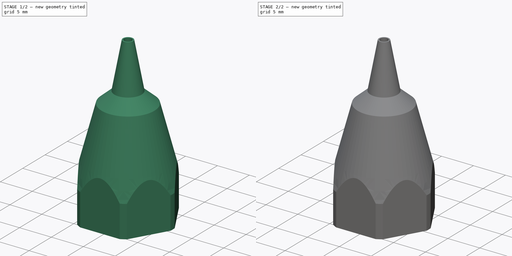
[diagram: build sequence overview — one tinted view per stage of 2, left to right]
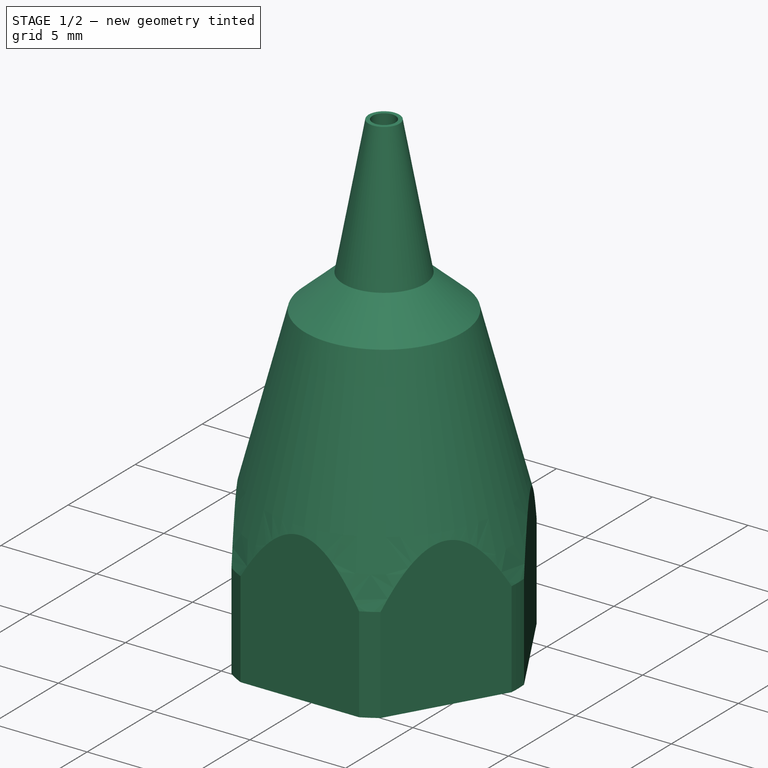
[diagram: stage 1 of 2 — iso view after this stage's code; geometry added in this stage tinted green]
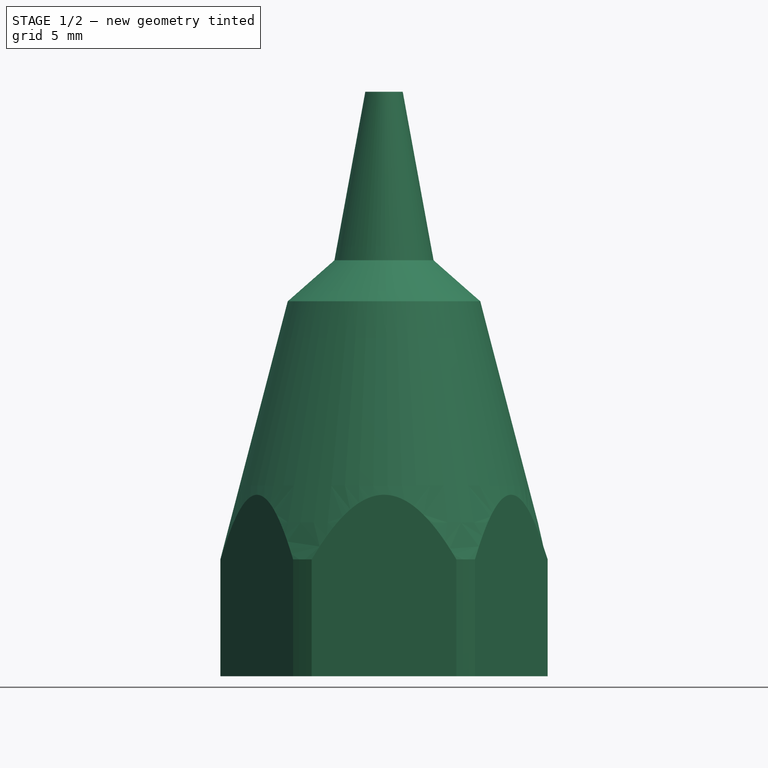
[diagram: stage 1 of 2 — front view after this stage's code; geometry added in this stage tinted green]
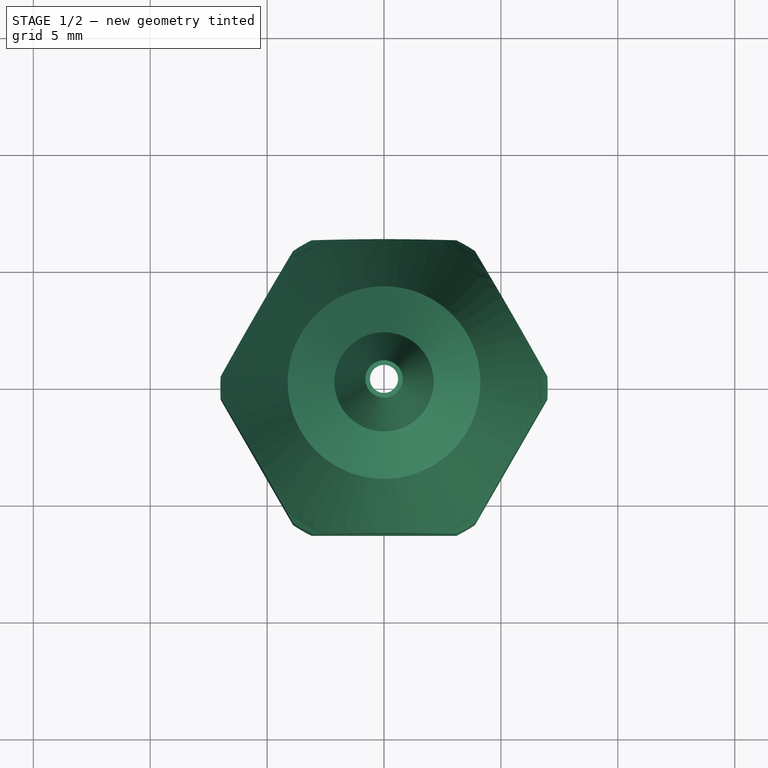
[diagram: stage 1 of 2 — top view after this stage's code; geometry added in this stage tinted green]
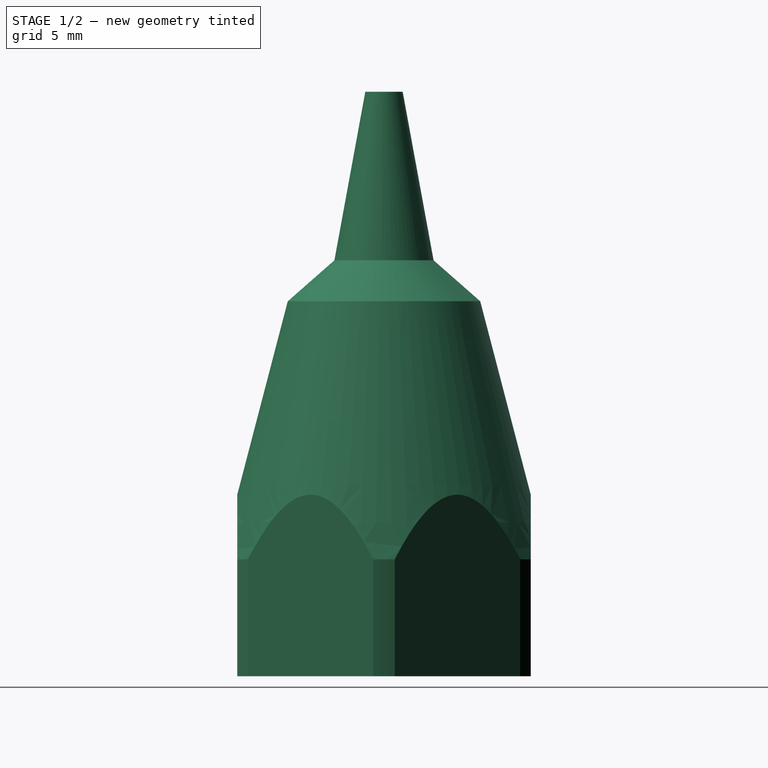
[diagram: stage 1 of 2 — right view after this stage's code; geometry added in this stage tinted green]
FCSTD DOCUMENT  (FreeCAD 0.18R15969 (Git))
Label: glue_adapter_4
License: All rights reserved
LicenseURL: http://en.wikipedia.org/wiki/All_rights_reserved
objects: Sketcher::SketchObject×4, PartDesign::Revolution×3, PartDesign::Pocket×1, PartDesign::Body×1
note: 13 computed .brp shape members not serialized (recipe doc carries the construction recipe); baked Part::Feature solids carry a one-line shape summary decoded from their .brp

FEATURE [Sketcher::SketchObject] Sketch
  MapMode = 5
  Placement = pos=(0,0,0) rot=(1,0,0;1.5708rad)
  Support = -> [XZ_Plane]
  sketch-geometry (11):
    g0: LineSegment StartX=-1 StartY=14.6 StartZ=0 EndX=-2.3 EndY=14.6 EndZ=0
    g1: LineSegment StartX=-2.3 StartY=14.6 StartZ=0 EndX=-3.2 EndY=6.5 EndZ=0
    g2: LineSegment StartX=-3.2 StartY=6.5 StartZ=0 EndX=-4.38 EndY=5 EndZ=0
    g3: LineSegment StartX=-4.38 StartY=5 StartZ=0 EndX=-4.38 EndY=0 EndZ=0
    g4: LineSegment StartX=-4.38 StartY=0 StartZ=0 EndX=-7 EndY=0 EndZ=0
    g5: LineSegment StartX=-7 StartY=0 StartZ=0 EndX=-7 EndY=5 EndZ=0
    g6: LineSegment StartX=-0.8 StartY=25 StartZ=0 EndX=-0.6 EndY=25 EndZ=0
    g7: LineSegment StartX=-0.6 StartY=25 StartZ=0 EndX=-1 EndY=14.6 EndZ=0
    g8: LineSegment StartX=-0.8 StartY=25 StartZ=0 EndX=-2.1211 EndY=17.7918 EndZ=0
    g9: LineSegment StartX=-2.1211 StartY=17.7918 StartZ=0 EndX=-4.11843 EndY=16.0366 EndZ=0
    g10: LineSegment StartX=-4.11843 StartY=16.0366 StartZ=0 EndX=-7 EndY=5 EndZ=0
  constraints (29):
    c: Horizontal(g0)
    c: Coincident(g0,g1)
    c: Coincident(g1,g2)
    c: Coincident(g2,g3)
    c: PointOnObject(g3,g-1)
    c: Vertical(g3)
    c: Coincident(g3,g4)
    c: PointOnObject(g4,g-1)
    c: Coincident(g4,g5)
    c: Vertical(g5)
    c: Horizontal(g6)
    c: Coincident(g6,g7)
    c: Coincident(g7,g0)
    c: DistanceY(g-1,g0) = 14.6
    c: DistanceX(g0,g-1) = 2.3
    c: DistanceX(g0,g-1) = 1
    c: DistanceY(g-1,g2) = 5
    c: DistanceX(g1,g-1) = 3.2
    c: DistanceX(g2,g-1) = 4.38
    c: DistanceX(g6,g-1) = 0.6
    c: DistanceX(g6,g-1) = 0.8
    c: DistanceY(g-1,g6) = 25
    c: DistanceX(g4,g-1) = 7
    c: DistanceY(g-1,g5) = 5
    c: DistanceY(g-1,g1) = 6.5
    c: Coincident(g6,g8)
    c: Coincident(g8,g9)
    c: Coincident(g9,g10)
    c: Coincident(g10,g5)
FEATURE [PartDesign::Revolution] Revolution
  Angle = 360
  Axis = (0,-2e-16,1)
  Base = (0,0,0)
  Placement = pos=(0,0,0) rot=(1,0,0;1.5708rad)
  Profile = -> Sketch
  ReferenceAxis = -> Sketch [V_Axis]
  Refine = true
FEATURE [Sketcher::SketchObject] Sketch001
  MapMode = 5
  Placement = pos=(0,0,0) rot=(1,0,0;3.14159rad)
  Support = -> [Revolution]
  sketch-geometry (8):
    g0: LineSegment StartX=-3.625 StartY=6.27868 StartZ=0 EndX=-7.25 EndY=0 EndZ=0
    g1: LineSegment StartX=-7.25 StartY=0 StartZ=0 EndX=-3.625 EndY=-6.27868 EndZ=0
    g2: LineSegment StartX=-3.625 StartY=-6.27868 StartZ=0 EndX=3.625 EndY=-6.27868 EndZ=0
    g3: LineSegment StartX=3.625 StartY=-6.27868 StartZ=0 EndX=7.25 EndY=-9e-16 EndZ=0
    g4: LineSegment StartX=7.25 StartY=-9e-16 StartZ=0 EndX=3.625 EndY=6.27868 EndZ=0
    g5: LineSegment StartX=3.625 StartY=6.27868 StartZ=0 EndX=-3.625 EndY=6.27868 EndZ=0
    g6: Circle [constr] CenterX=0 CenterY=0 CenterZ=0 NormalX=0 NormalY=0 NormalZ=1 AngleXU=0 Radius=7.25
    g7: Circle CenterX=0 CenterY=0 CenterZ=0 NormalX=0 NormalY=0 NormalZ=1 AngleXU=0 Radius=16.1462
  constraints (17):
    c: Coincident(g0,g1)
    c: Coincident(g1,g2)
    c: Coincident(g2,g3)
    c: Coincident(g3,g4)
    c: Coincident(g4,g5)
    c: Coincident(g5,g0)
    c: Equal(g0, g1-g5) x5
    c: PointOnObject(g0,g6)
    c: PointOnObject(g1,g6)
    c: PointOnObject(g2,g6)
    c: PointOnObject(g3,g6)
    c: PointOnObject(g4,g6)
    c: PointOnObject(g5,g6)
    c: Coincident(g6,g-1)
    c: Horizontal(g5)
    c: DistanceX(g0,g3) = 14.5
    c: Coincident(g7,g-1)
FEATURE [PartDesign::Pocket] Pocket
  BaseFeature = -> Revolution
  Length = 5
  Length2 = 100
  Placement = pos=(0,0,0) rot=(1,0,0;1.5708rad)
  Profile = -> Sketch001
  Refine = true
  Type = 1
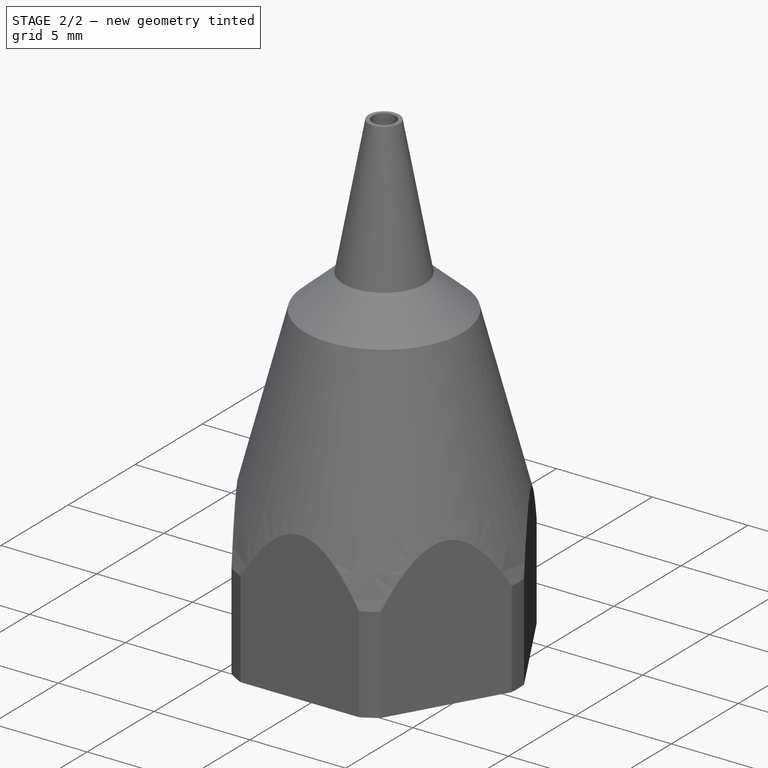
[diagram: stage 2 of 2 — iso view after this stage's code; geometry added in this stage tinted green]
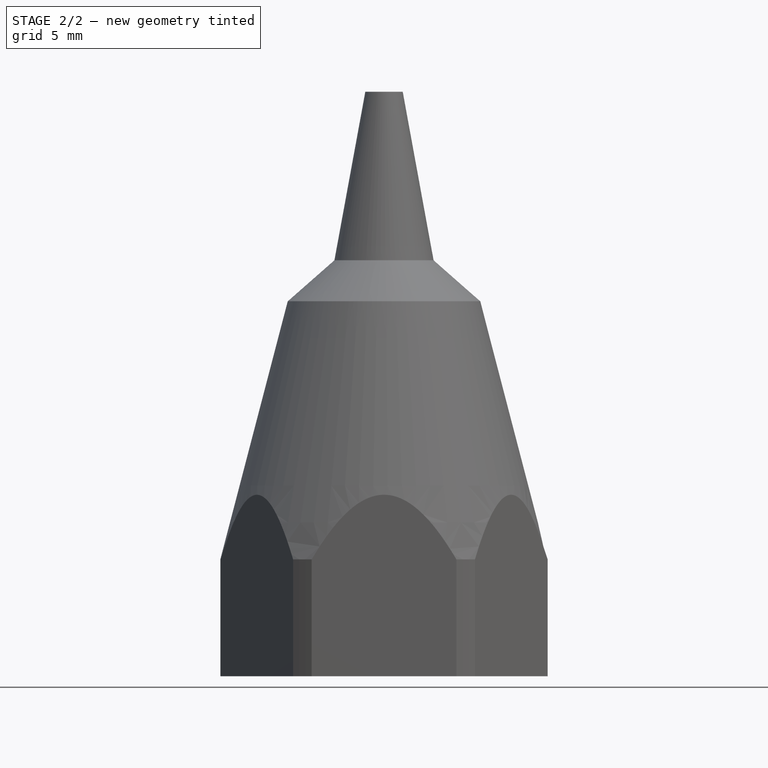
[diagram: stage 2 of 2 — front view after this stage's code; geometry added in this stage tinted green]
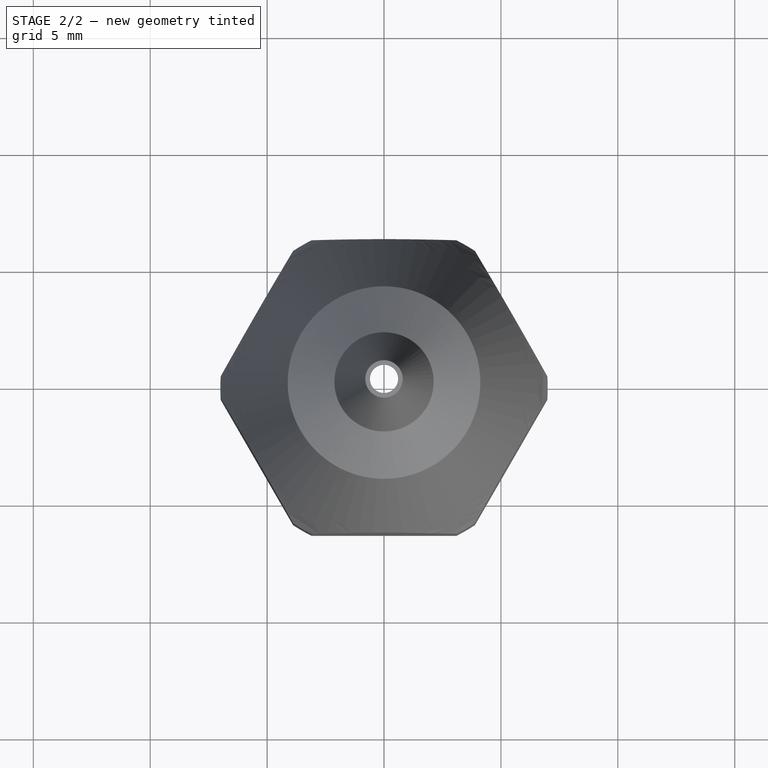
[diagram: stage 2 of 2 — top view after this stage's code; geometry added in this stage tinted green]
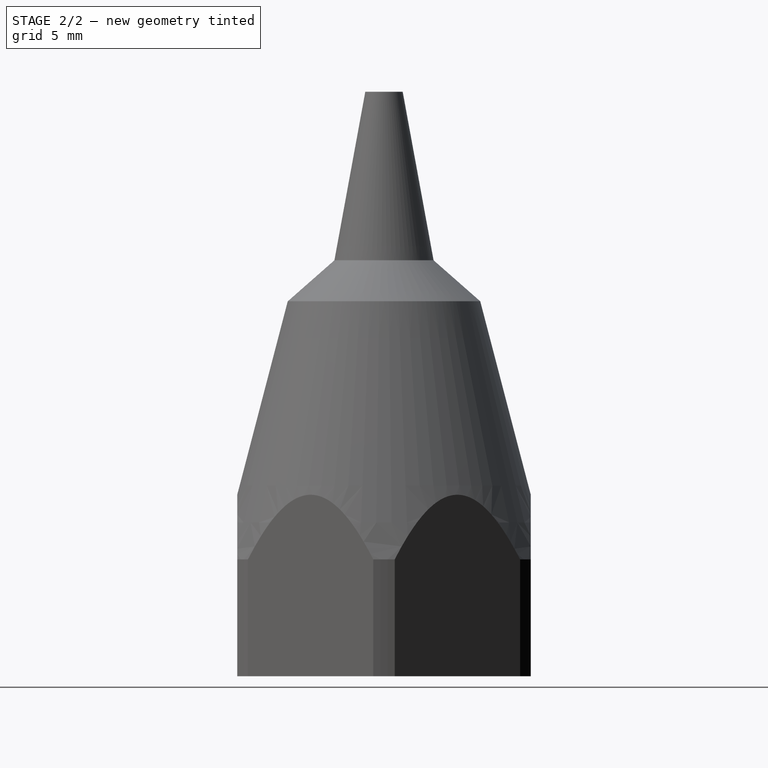
[diagram: stage 2 of 2 — right view after this stage's code; geometry added in this stage tinted green]
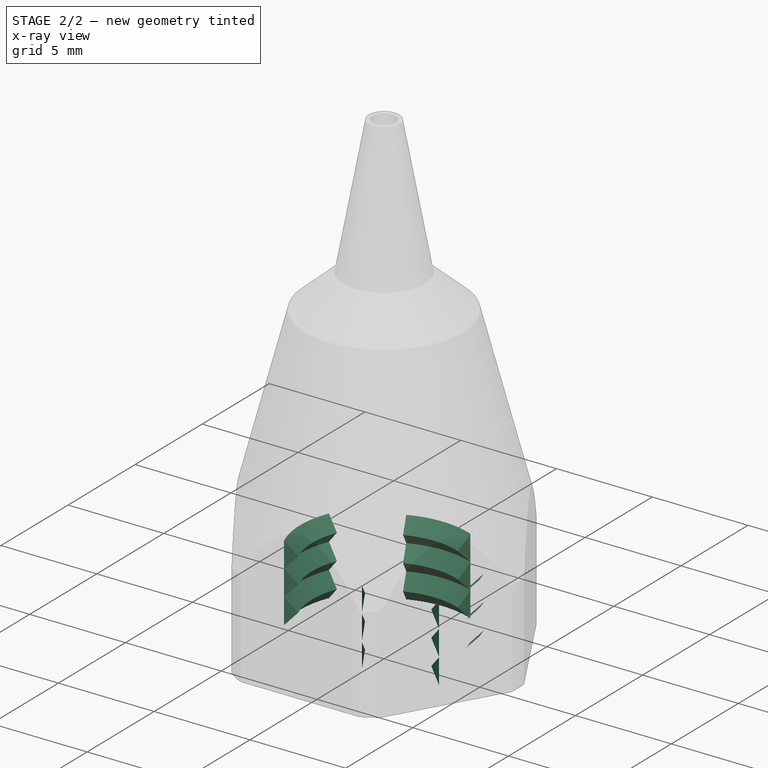
[diagram: stage 2 of 2 — x-ray composite at the iso view; earlier geometry ghosted, this stage's added geometry solid]
FEATURE [Sketcher::SketchObject] Sketch002
  MapMode = 5
  Placement = pos=(0,0,0) rot=(1,0,0;1.5708rad)
  Support = -> [XZ_Plane]
  expr: Constraints[71] = 4 / 3 * 0
  expr: Constraints[31] = 4 / 3 * 0.5
  sketch-geometry (26):
    g0: LineSegment StartX=-4.88 StartY=4.66667 StartZ=0 EndX=-4.38 EndY=4.66667 EndZ=0
    g1: LineSegment StartX=-4.38 StartY=4.66667 StartZ=0 EndX=-3.75 EndY=4 EndZ=0
    g2: LineSegment StartX=-3.75 StartY=4 StartZ=0 EndX=-4.38 EndY=3.33333 EndZ=0
    g3: LineSegment StartX=-4.88 StartY=0.666667 StartZ=0 EndX=-4.88 EndY=4.66667 EndZ=0
    g4: LineSegment [constr] StartX=-4.38 StartY=4.66667 StartZ=0 EndX=-4.38 EndY=3.33333 EndZ=0
    g5: LineSegment [constr] StartX=-4.38 StartY=3.33333 StartZ=0 EndX=-4.38 EndY=2 EndZ=0
    g6: LineSegment [constr] StartX=-4.38 StartY=2 StartZ=0 EndX=-4.38 EndY=0.666667 EndZ=0
    g7: LineSegment StartX=-4.38 StartY=3.33333 StartZ=0 EndX=-3.75 EndY=2.66667 EndZ=0
    g8: LineSegment StartX=-3.75 StartY=2.66667 StartZ=0 EndX=-4.38 EndY=2 EndZ=0
    g9: LineSegment StartX=-4.38 StartY=2 StartZ=0 EndX=-3.75 EndY=1.33333 EndZ=0
    g10: LineSegment StartX=-3.75 StartY=1.33333 StartZ=0 EndX=-4.38 EndY=0.666667 EndZ=0
    g11: LineSegment StartX=-4.88 StartY=0.666667 StartZ=0 EndX=-4.38 EndY=0.666667 EndZ=0
    g12: LineSegment StartX=4.88 StartY=0 StartZ=0 EndX=4.88 EndY=4 EndZ=0
    g13: LineSegment StartX=4.88 StartY=4 StartZ=0 EndX=4.38 EndY=4 EndZ=0
    g14: LineSegment StartX=4.38 StartY=4 StartZ=0 EndX=3.75 EndY=3.33333 EndZ=0
    g15: LineSegment StartX=3.75 StartY=3.33333 StartZ=0 EndX=4.38 EndY=2.66667 EndZ=0
    g16: LineSegment StartX=4.38 StartY=2.66667 StartZ=0 EndX=3.75 EndY=2 EndZ=0
    g17: LineSegment StartX=3.75 StartY=2 StartZ=0 EndX=4.38 EndY=1.33333 EndZ=0
    g18: LineSegment StartX=4.38 StartY=1.33333 StartZ=0 EndX=3.75 EndY=0.666667 EndZ=0
    g19: LineSegment StartX=3.75 StartY=0.666667 StartZ=0 EndX=4.38 EndY=0 EndZ=0
    g20: LineSegment StartX=4.38 StartY=0 StartZ=0 EndX=4.88 EndY=0 EndZ=0
    g21: LineSegment [constr] StartX=4.38 StartY=4 StartZ=0 EndX=4.38 EndY=2.66667 EndZ=0
    g22: LineSegment [constr] StartX=4.38 StartY=2.66667 StartZ=0 EndX=4.38 EndY=1.33333 EndZ=0
    g23: LineSegment [constr] StartX=4.38 StartY=1.33333 StartZ=0 EndX=4.38 EndY=0 EndZ=0
    g24: LineSegment [constr] StartX=-3.75 StartY=4 StartZ=0 EndX=0 EndY=4 EndZ=0
    g25: LineSegment [constr] StartX=3.75 StartY=3.33333 StartZ=0 EndX=0 EndY=3.33333 EndZ=0
  constraints (72):
    c: Coincident(g0,g1)
    c: Coincident(g1,g2)
    c: Coincident(g3,g0)
    c: Vertical(g3)
    c: Horizontal(g0)
    c: DistanceX(g2,g-1) = 4.38
    c: Equal(g1,g2)
    c: DistanceX(g1,g-1) = 3.75
    c: Coincident(g0,g4)
    c: Coincident(g4,g2)
    c: Vertical(g4)
    c: Coincident(g4,g5)
    c: Vertical(g5)
    c: Coincident(g5,g6)
    c: Vertical(g6)
    c: Coincident(g2,g7)
    c: Coincident(g7,g8)
    c: Coincident(g8,g5)
    c: Coincident(g8,g9)
    c: Coincident(g9,g10)
    c: Coincident(g10,g6)
    c: Equal(g2,g7)
    c: Equal(g7,g8)
    c: Equal(g8,g9)
    c: Equal(g9,g10)
    c: Equal(g4,g5)
    c: Equal(g5,g6)
    c: Coincident(g11,g3)
    c: Coincident(g11,g10)
    c: Horizontal(g11)
    c: DistanceY(g10,g0) = 4
    c: DistanceY(g-1,g10) = 0.666667
    c: Vertical(g12)
    c: Coincident(g12,g13)
    c: Horizontal(g13)
    c: Coincident(g13,g14)
    c: Coincident(g14,g15)
    c: Coincident(g15,g16)
    c: Coincident(g16,g17)
    c: Coincident(g17,g18)
    c: Coincident(g18,g19)
    c: Coincident(g19,g20)
    c: Horizontal(g20)
    c: Coincident(g12,g20)
    c: Equal(g20,g13)
    c: Equal(g13,g0)
    c: Equal(g14,g15)
    c: Equal(g15,g16)
    c: Equal(g16,g17)
    c: Equal(g17,g18)
    c: Equal(g18,g19)
    c: Equal(g19,g10)
    c: Equal(g12,g3)
    c: Coincident(g21,g13)
    c: Coincident(g21,g15)
    c: Vertical(g21)
    c: Coincident(g22,g15)
    c: Coincident(g22,g17)
    c: Coincident(g23,g17)
    c: Coincident(g23,g19)
    c: Vertical(g22)
    c: Equal(g23,g22)
    c: Equal(g22,g21)
    c: DistanceX(g0,g0) = 0.5
    c: Coincident(g24,g1)
    c: PointOnObject(g24,g-2)
    c: Horizontal(g24)
    c: Coincident(g25,g14)
    c: Horizontal(g25)
    c: Equal(g24,g25)
    c: PointOnObject(g25,g-2)
    c: DistanceY(g-1,g19) = 0
FEATURE [Sketcher::SketchObject] Sketch003
  MapMode = 5
  Placement = pos=(0,0,0) rot=(0.57735,0.57735,0.57735;2.0944rad)
  Support = -> [YZ_Plane]
  expr: Constraints[71] = 4 / 3 * 0.25
  expr: Constraints[31] = 4 / 3 * 0.75
  sketch-geometry (26):
    g0: LineSegment StartX=-4.88 StartY=5 StartZ=0 EndX=-4.38 EndY=5 EndZ=0
    g1: LineSegment StartX=-4.38 StartY=5 StartZ=0 EndX=-3.75 EndY=4.33333 EndZ=0
    g2: LineSegment StartX=-3.75 StartY=4.33333 StartZ=0 EndX=-4.38 EndY=3.66667 EndZ=0
    g3: LineSegment StartX=-4.88 StartY=1 StartZ=0 EndX=-4.88 EndY=5 EndZ=0
    g4: LineSegment [constr] StartX=-4.38 StartY=5 StartZ=0 EndX=-4.38 EndY=3.66667 EndZ=0
    g5: LineSegment [constr] StartX=-4.38 StartY=3.66667 StartZ=0 EndX=-4.38 EndY=2.33333 EndZ=0
    g6: LineSegment [constr] StartX=-4.38 StartY=2.33333 StartZ=0 EndX=-4.38 EndY=1 EndZ=0
    g7: LineSegment StartX=-4.38 StartY=3.66667 StartZ=0 EndX=-3.75 EndY=3 EndZ=0
    g8: LineSegment StartX=-3.75 StartY=3 StartZ=0 EndX=-4.38 EndY=2.33333 EndZ=0
    g9: LineSegment StartX=-4.38 StartY=2.33333 StartZ=0 EndX=-3.75 EndY=1.66667 EndZ=0
    g10: LineSegment StartX=-3.75 StartY=1.66667 StartZ=0 EndX=-4.38 EndY=1 EndZ=0
    g11: LineSegment StartX=-4.88 StartY=1 StartZ=0 EndX=-4.38 EndY=1 EndZ=0
    g12: LineSegment StartX=4.88 StartY=0.333333 StartZ=0 EndX=4.88 EndY=4.33333 EndZ=0
    g13: LineSegment StartX=4.88 StartY=4.33333 StartZ=0 EndX=4.38 EndY=4.33333 EndZ=0
    g14: LineSegment StartX=4.38 StartY=4.33333 StartZ=0 EndX=3.75 EndY=3.66667 EndZ=0
    g15: LineSegment StartX=3.75 StartY=3.66667 StartZ=0 EndX=4.38 EndY=3 EndZ=0
    g16: LineSegment StartX=4.38 StartY=3 StartZ=0 EndX=3.75 EndY=2.33333 EndZ=0
    g17: LineSegment StartX=3.75 StartY=2.33333 StartZ=0 EndX=4.38 EndY=1.66667 EndZ=0
    g18: LineSegment StartX=4.38 StartY=1.66667 StartZ=0 EndX=3.75 EndY=1 EndZ=0
    g19: LineSegment StartX=3.75 StartY=1 StartZ=0 EndX=4.38 EndY=0.333333 EndZ=0
    g20: LineSegment StartX=4.38 StartY=0.333333 StartZ=0 EndX=4.88 EndY=0.333333 EndZ=0
    g21: LineSegment [constr] StartX=4.38 StartY=4.33333 StartZ=0 EndX=4.38 EndY=3 EndZ=0
    g22: LineSegment [constr] StartX=4.38 StartY=3 StartZ=0 EndX=4.38 EndY=1.66667 EndZ=0
    g23: LineSegment [constr] StartX=4.38 StartY=1.66667 StartZ=0 EndX=4.38 EndY=0.333333 EndZ=0
    g24: LineSegment [constr] StartX=-3.75 StartY=4.33333 StartZ=0 EndX=0 EndY=4.33333 EndZ=0
    g25: LineSegment [constr] StartX=3.75 StartY=3.66667 StartZ=0 EndX=0 EndY=3.66667 EndZ=0
  constraints (72):
    c: Coincident(g0,g1)
    c: Coincident(g1,g2)
    c: Coincident(g3,g0)
    c: Vertical(g3)
    c: Horizontal(g0)
    c: DistanceX(g2,g-1) = 4.38
    c: Equal(g1,g2)
    c: DistanceX(g1,g-1) = 3.75
    c: Coincident(g0,g4)
    c: Coincident(g4,g2)
    c: Vertical(g4)
    c: Coincident(g4,g5)
    c: Vertical(g5)
    c: Coincident(g5,g6)
    c: Vertical(g6)
    c: Coincident(g2,g7)
    c: Coincident(g7,g8)
    c: Coincident(g8,g5)
    c: Coincident(g8,g9)
    c: Coincident(g9,g10)
    c: Coincident(g10,g6)
    c: Equal(g2,g7)
    c: Equal(g7,g8)
    c: Equal(g8,g9)
    c: Equal(g9,g10)
    c: Equal(g4,g5)
    c: Equal(g5,g6)
    c: Coincident(g11,g3)
    c: Coincident(g11,g10)
    c: Horizontal(g11)
    c: DistanceY(g10,g0) = 4
    c: DistanceY(g-1,g10) = 1
    c: Vertical(g12)
    c: Coincident(g12,g13)
    c: Horizontal(g13)
    c: Coincident(g13,g14)
    c: Coincident(g14,g15)
    c: Coincident(g15,g16)
    c: Coincident(g16,g17)
    c: Coincident(g17,g18)
    c: Coincident(g18,g19)
    c: Coincident(g19,g20)
    c: Horizontal(g20)
    c: Coincident(g12,g20)
    c: Equal(g20,g13)
    c: Equal(g13,g0)
    c: Equal(g14,g15)
    c: Equal(g15,g16)
    c: Equal(g16,g17)
    c: Equal(g17,g18)
    c: Equal(g18,g19)
    c: Equal(g19,g10)
    c: Equal(g12,g3)
    c: Coincident(g21,g13)
    c: Coincident(g21,g15)
    c: Vertical(g21)
    c: Coincident(g22,g15)
    c: Coincident(g22,g17)
    c: Coincident(g23,g17)
    c: Coincident(g23,g19)
    c: Vertical(g22)
    c: Equal(g23,g22)
    c: Equal(g22,g21)
    c: DistanceX(g0,g0) = 0.5
    c: Coincident(g24,g1)
    c: PointOnObject(g24,g-2)
    c: Horizontal(g24)
    c: Coincident(g25,g14)
    c: Horizontal(g25)
    c: Equal(g24,g25)
    c: PointOnObject(g25,g-2)
    c: DistanceY(g-1,g19) = 0.333333
FEATURE [PartDesign::Revolution] Revolution001
  Angle = 45
  Axis = (0,-2e-16,1)
  Base = (0,0,0)
  BaseFeature = -> Pocket
  Midplane = true
  Placement = pos=(0,0,0) rot=(1,0,0;1.5708rad)
  Profile = -> Sketch002
  ReferenceAxis = -> Sketch002 [V_Axis]
  Refine = true
FEATURE [PartDesign::Revolution] Revolution002
  Angle = 45
  Axis = (-2e-16,3e-16,1)
  Base = (0,0,0)
  BaseFeature = -> Revolution001
  Midplane = true
  Placement = pos=(0,0,0) rot=(1,0,0;1.5708rad)
  Profile = -> Sketch003
  ReferenceAxis = -> Sketch003 [V_Axis]
  Refine = true
FEATURE [PartDesign::Body] Body
  Group = -> [Sketch,Revolution,Sketch001,Pocket,Sketch002,Sketch003,Revolution001,Revolution002]
  Origin = -> Origin
  Tip = -> Revolution002
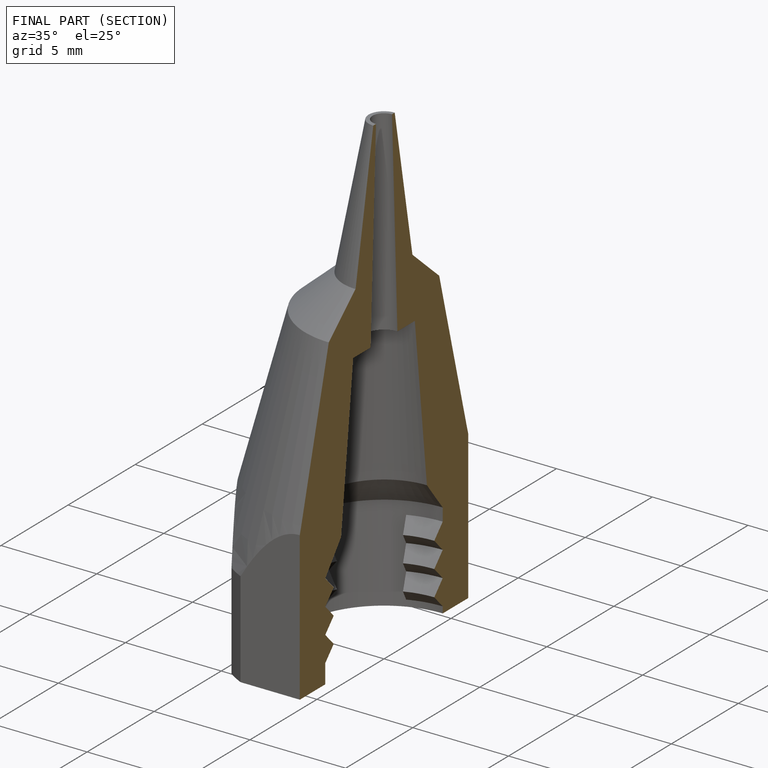
[diagram: finished part — half-section view (interior)]
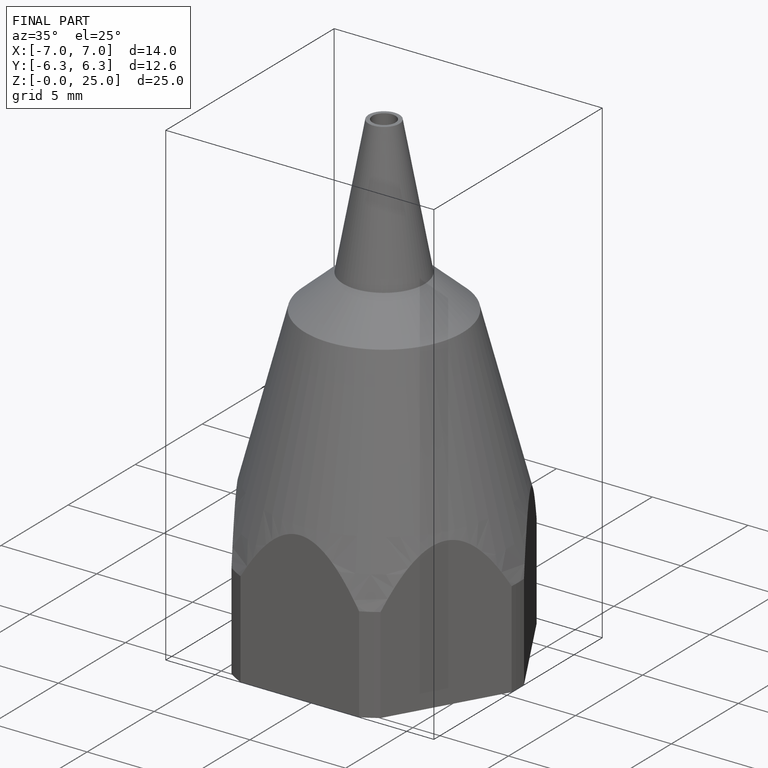
[diagram: finished part — iso view with bounding-box wireframe]
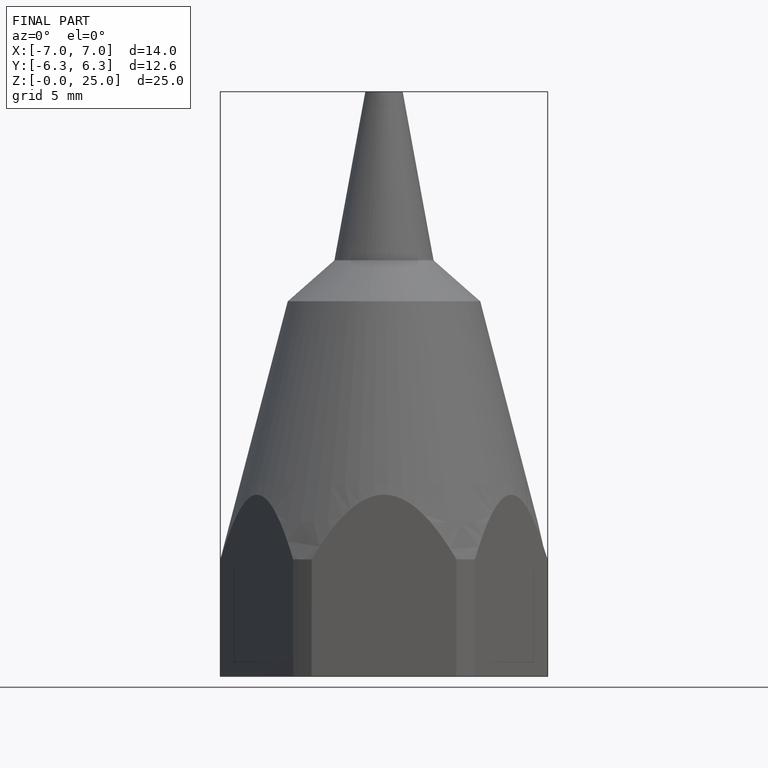
[diagram: finished part — front view with bounding-box wireframe]
